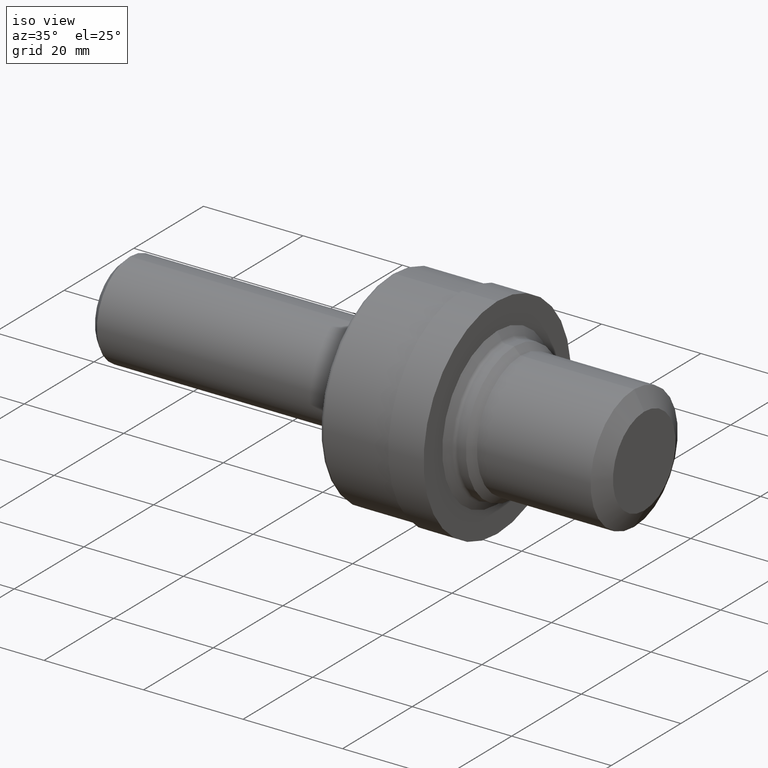
[diagram: clean part render]
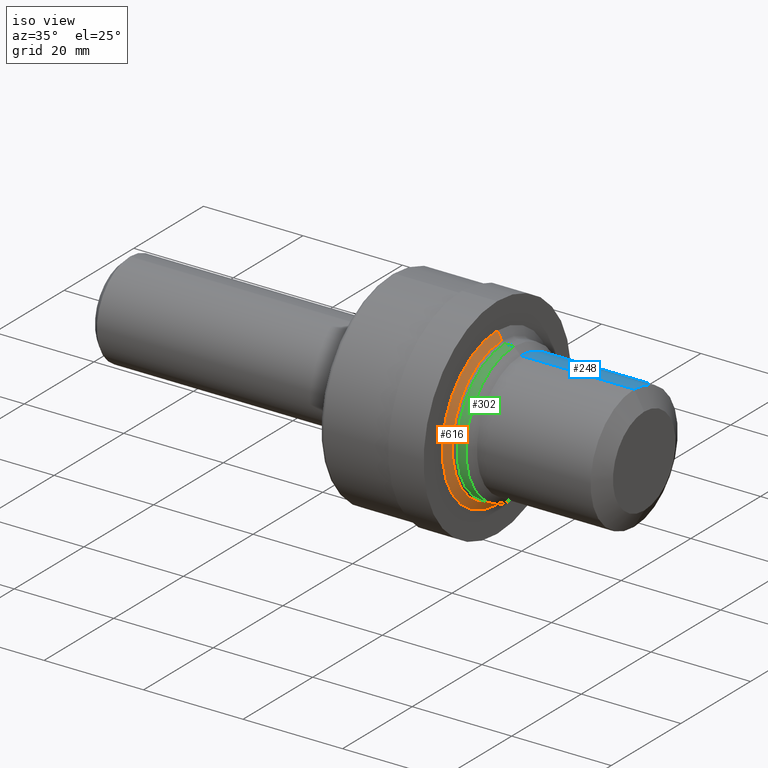
[diagram: same view with three faces highlighted in distinct colors, each labeled with its STEP entity id]
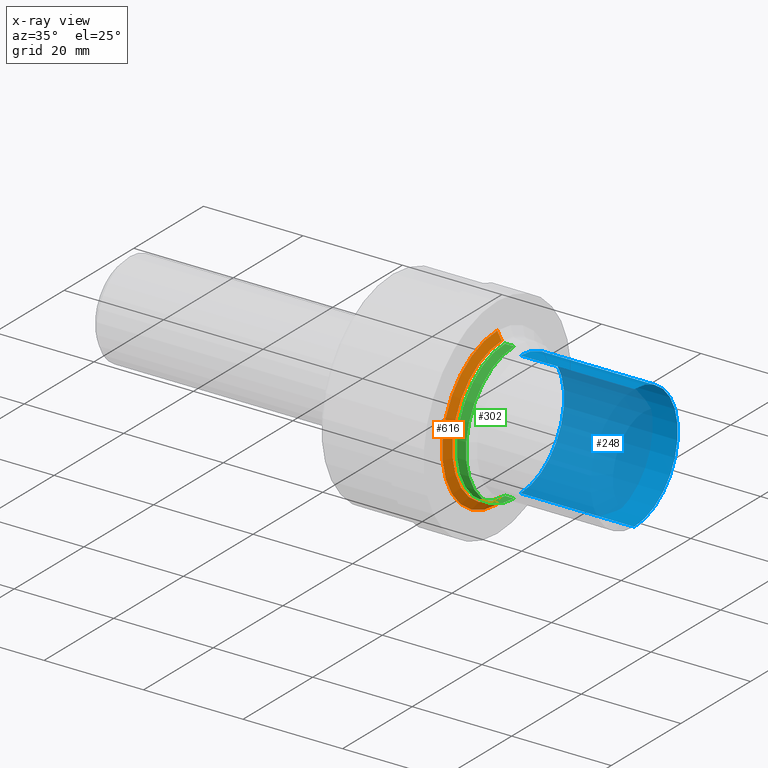
[diagram: x-ray of the same camera — body ghosted, the three highlighted faces saturated]
A machine part, iso view with three faces highlighted in distinct colors.
The next image is the same camera in x-ray (body ghosted, the three faces saturated) — at least one of them is partly hidden behind the body in this view.
Their STEP definitions:

[orange] entity #616 — the highlighted conical surface has half-angle 60 deg.
#7 = LINE ( 'NONE', #258, #745 ) ;
#19 = CARTESIAN_POINT ( 'NONE',  ( 2.955999999999999961, 0.000000000000000000, 0.6209999999999999964 ) ) ;
#36 = ORIENTED_EDGE ( 'NONE', *, *, #107, .F. ) ;
#45 = EDGE_CURVE ( 'NONE', #503, #673, #7, .T. ) ;
#66 = EDGE_CURVE ( 'NONE', #95, #503, #397, .T. ) ;
#71 = AXIS2_PLACEMENT_3D ( 'NONE', #545, #225, #612 ) ;
#72 = DIRECTION ( 'NONE',  ( -1.000000000000000000, -0.000000000000000000, -0.000000000000000000 ) ) ;
#95 = VERTEX_POINT ( 'NONE', #644 ) ;
#107 = EDGE_CURVE ( 'NONE', #95, #560, #769, .T. ) ;
#128 = ORIENTED_EDGE ( 'NONE', *, *, #501, .F. ) ;
#130 = FACE_OUTER_BOUND ( 'NONE', #678, .T. ) ;
#133 = DIRECTION ( 'NONE',  ( 0.000000000000000000, 0.000000000000000000, 1.000000000000000000 ) ) ;
#194 = DIRECTION ( 'NONE',  ( 0.000000000000000000, 0.000000000000000000, 1.000000000000000000 ) ) ;
#196 = DIRECTION ( 'NONE',  ( -0.4999999999999991118, 0.000000000000000000, 0.8660254037844391517 ) ) ;
#199 = CARTESIAN_POINT ( 'NONE',  ( 2.992026656797432516, 6.840877020037116138E-17, -0.5586000000000000965 ) ) ;
#225 = DIRECTION ( 'NONE',  ( -1.000000000000000000, -0.000000000000000000, -0.000000000000000000 ) ) ;
#258 = CARTESIAN_POINT ( 'NONE',  ( 2.992026656797432516, 0.000000000000000000, 0.5586000000000000965 ) ) ;
#278 = DIRECTION ( 'NONE',  ( -1.000000000000000000, -0.000000000000000000, -0.000000000000000000 ) ) ;
#384 = CARTESIAN_POINT ( 'NONE',  ( 2.992026656797432516, 0.000000000000000000, 0.000000000000000000 ) ) ;
#397 = CIRCLE ( 'NONE', #787, 0.5586000000000000965 ) ;
#416 = VECTOR ( 'NONE', #460, 39.37007874015748143 ) ;
#453 = CARTESIAN_POINT ( 'NONE',  ( 2.992026656797432516, 0.000000000000000000, 0.000000000000000000 ) ) ;
#460 = DIRECTION ( 'NONE',  ( -0.4999999999999991118, 1.060575238724907531E-16, -0.8660254037844391517 ) ) ;
#501 = EDGE_CURVE ( 'NONE', #560, #673, #670, .T. ) ;
#503 = VERTEX_POINT ( 'NONE', #733 ) ;
#545 = CARTESIAN_POINT ( 'NONE',  ( 2.955999999999999961, 0.000000000000000000, 0.000000000000000000 ) ) ;
#560 = VERTEX_POINT ( 'NONE', #632 ) ;
#612 = DIRECTION ( 'NONE',  ( 0.000000000000000000, 0.000000000000000000, 1.000000000000000000 ) ) ;
#616 = ADVANCED_FACE ( 'NONE', ( #130 ), #621, .T. ) ;
#621 = CONICAL_SURFACE ( 'NONE', #734, 0.5586000000000000965, 1.047197551196598742 ) ;
#632 = CARTESIAN_POINT ( 'NONE',  ( 2.955999999999999961, 7.605056622705062601E-17, -0.6209999999999999964 ) ) ;
#634 = ORIENTED_EDGE ( 'NONE', *, *, #66, .T. ) ;
#644 = CARTESIAN_POINT ( 'NONE',  ( 2.992026656797432516, 6.840877020037116138E-17, -0.5585999999999999854 ) ) ;
#670 = CIRCLE ( 'NONE', #71, 0.6209999999999999964 ) ;
#673 = VERTEX_POINT ( 'NONE', #19 ) ;
#678 = EDGE_LOOP ( 'NONE', ( #36, #634, #794, #128 ) ) ;
#733 = CARTESIAN_POINT ( 'NONE',  ( 2.992026656797432516, 0.000000000000000000, 0.5585999999999999854 ) ) ;
#734 = AXIS2_PLACEMENT_3D ( 'NONE', #384, #72, #194 ) ;
#745 = VECTOR ( 'NONE', #196, 39.37007874015748143 ) ;
#769 = LINE ( 'NONE', #199, #416 ) ;
#787 = AXIS2_PLACEMENT_3D ( 'NONE', #453, #278, #133 ) ;
#794 = ORIENTED_EDGE ( 'NONE', *, *, #45, .T. ) ;

[blue] entity #248 — the highlighted cylindrical surface (partial cylindrical patch) has radius 12.5095 mm, axis along (-1, -0, -0).
#17 = AXIS2_PLACEMENT_3D ( 'NONE', #696, #756, #250 ) ;
#49 = AXIS2_PLACEMENT_3D ( 'NONE', #559, #812, #239 ) ;
#59 = CYLINDRICAL_SURFACE ( 'NONE', #17, 0.4924999999999999933 ) ;
#89 = CARTESIAN_POINT ( 'NONE',  ( 0.000000000000000000, 6.031385485800715365E-17, -0.4924999999999999933 ) ) ;
#103 = ORIENTED_EDGE ( 'NONE', *, *, #597, .F. ) ;
#124 = EDGE_CURVE ( 'NONE', #221, #355, #659, .T. ) ;
#171 = EDGE_CURVE ( 'NONE', #748, #355, #200, .T. ) ;
#181 = CARTESIAN_POINT ( 'NONE',  ( 4.040000000000000036, 6.031385485800715365E-17, -0.4924999999999999933 ) ) ;
#189 = FACE_OUTER_BOUND ( 'NONE', #492, .T. ) ;
#200 = CIRCLE ( 'NONE', #49, 0.4924999999999999933 ) ;
#214 = CARTESIAN_POINT ( 'NONE',  ( 3.140599999999999170, 6.031385485800715365E-17, -0.4924999999999999933 ) ) ;
#221 = VERTEX_POINT ( 'NONE', #181 ) ;
#239 = DIRECTION ( 'NONE',  ( 0.000000000000000000, 0.000000000000000000, 1.000000000000000000 ) ) ;
#242 = CIRCLE ( 'NONE', #683, 0.4924999999999999933 ) ;
#248 = ADVANCED_FACE ( 'NONE', ( #189 ), #59, .T. ) ;
#250 = DIRECTION ( 'NONE',  ( 0.000000000000000000, 0.000000000000000000, 1.000000000000000000 ) ) ;
#304 = ORIENTED_EDGE ( 'NONE', *, *, #171, .F. ) ;
#355 = VERTEX_POINT ( 'NONE', #214 ) ;
#396 = CARTESIAN_POINT ( 'NONE',  ( 4.040000000000000036, 0.000000000000000000, 0.000000000000000000 ) ) ;
#404 = DIRECTION ( 'NONE',  ( 0.000000000000000000, 0.000000000000000000, 1.000000000000000000 ) ) ;
#418 = VECTOR ( 'NONE', #581, 39.37007874015748143 ) ;
#476 = VECTOR ( 'NONE', #525, 39.37007874015748143 ) ;
#492 = EDGE_LOOP ( 'NONE', ( #672, #808, #304, #103 ) ) ;
#525 = DIRECTION ( 'NONE',  ( -1.000000000000000000, -0.000000000000000000, -0.000000000000000000 ) ) ;
#532 = CARTESIAN_POINT ( 'NONE',  ( 0.000000000000000000, 0.000000000000000000, 0.4924999999999999933 ) ) ;
#559 = CARTESIAN_POINT ( 'NONE',  ( 3.140599999999999170, 0.000000000000000000, 0.000000000000000000 ) ) ;
#562 = VERTEX_POINT ( 'NONE', #824 ) ;
#579 = EDGE_CURVE ( 'NONE', #562, #221, #242, .T. ) ;
#581 = DIRECTION ( 'NONE',  ( -1.000000000000000000, -0.000000000000000000, -0.000000000000000000 ) ) ;
#595 = LINE ( 'NONE', #532, #418 ) ;
#596 = CARTESIAN_POINT ( 'NONE',  ( 3.140599999999999170, 0.000000000000000000, 0.4924999999999999933 ) ) ;
#597 = EDGE_CURVE ( 'NONE', #562, #748, #595, .T. ) ;
#642 = DIRECTION ( 'NONE',  ( -1.000000000000000000, -0.000000000000000000, -0.000000000000000000 ) ) ;
#659 = LINE ( 'NONE', #89, #476 ) ;
#672 = ORIENTED_EDGE ( 'NONE', *, *, #579, .T. ) ;
#683 = AXIS2_PLACEMENT_3D ( 'NONE', #396, #642, #404 ) ;
#696 = CARTESIAN_POINT ( 'NONE',  ( 0.000000000000000000, 0.000000000000000000, 0.000000000000000000 ) ) ;
#748 = VERTEX_POINT ( 'NONE', #596 ) ;
#756 = DIRECTION ( 'NONE',  ( -1.000000000000000000, -0.000000000000000000, -0.000000000000000000 ) ) ;
#808 = ORIENTED_EDGE ( 'NONE', *, *, #124, .T. ) ;
#812 = DIRECTION ( 'NONE',  ( -1.000000000000000000, -0.000000000000000000, -0.000000000000000000 ) ) ;
#824 = CARTESIAN_POINT ( 'NONE',  ( 4.040000000000000036, 0.000000000000000000, 0.4924999999999999933 ) ) ;

[green] entity #302 — the highlighted cylindrical surface (partial cylindrical patch) has radius 13.8201 mm, axis along (-1, -0, -0).
#13 = DIRECTION ( 'NONE',  ( 0.000000000000000000, 0.000000000000000000, 1.000000000000000000 ) ) ;
#63 = ORIENTED_EDGE ( 'NONE', *, *, #715, .F. ) ;
#65 = FACE_OUTER_BOUND ( 'NONE', #99, .T. ) ;
#73 = DIRECTION ( 'NONE',  ( -1.000000000000000000, -0.000000000000000000, -0.000000000000000000 ) ) ;
#80 = DIRECTION ( 'NONE',  ( -1.000000000000000000, -0.000000000000000000, -0.000000000000000000 ) ) ;
#88 = DIRECTION ( 'NONE',  ( -1.000000000000000000, -0.000000000000000000, -0.000000000000000000 ) ) ;
#99 = EDGE_LOOP ( 'NONE', ( #63, #676, #185, #511 ) ) ;
#106 = VERTEX_POINT ( 'NONE', #518 ) ;
#142 = CARTESIAN_POINT ( 'NONE',  ( 0.000000000000000000, 0.000000000000000000, 0.5441000000000000281 ) ) ;
#185 = ORIENTED_EDGE ( 'NONE', *, *, #572, .T. ) ;
#195 = DIRECTION ( 'NONE',  ( 0.000000000000000000, 0.000000000000000000, 1.000000000000000000 ) ) ;
#257 = CARTESIAN_POINT ( 'NONE',  ( 0.000000000000000000, 0.000000000000000000, 0.000000000000000000 ) ) ;
#302 = ADVANCED_FACE ( 'NONE', ( #65 ), #317, .T. ) ;
#309 = CIRCLE ( 'NONE', #770, 0.5441000000000000281 ) ;
#317 = CYLINDRICAL_SURFACE ( 'NONE', #719, 0.5441000000000000281 ) ;
#337 = CARTESIAN_POINT ( 'NONE',  ( 3.088999999999999968, 0.000000000000000000, 0.000000000000000000 ) ) ;
#343 = CARTESIAN_POINT ( 'NONE',  ( 3.017141393507181135, 0.000000000000000000, 0.5441000000000000281 ) ) ;
#393 = LINE ( 'NONE', #651, #578 ) ;
#435 = VERTEX_POINT ( 'NONE', #343 ) ;
#449 = DIRECTION ( 'NONE',  ( 0.000000000000000000, 0.000000000000000000, 1.000000000000000000 ) ) ;
#511 = ORIENTED_EDGE ( 'NONE', *, *, #797, .F. ) ;
#514 = DIRECTION ( 'NONE',  ( -1.000000000000000000, -0.000000000000000000, -0.000000000000000000 ) ) ;
#518 = CARTESIAN_POINT ( 'NONE',  ( 3.017141393507181135, 6.663303234160749700E-17, -0.5441000000000000281 ) ) ;
#520 = DIRECTION ( 'NONE',  ( -1.000000000000000000, -0.000000000000000000, -0.000000000000000000 ) ) ;
#566 = CIRCLE ( 'NONE', #771, 0.5441000000000000281 ) ;
#570 = EDGE_CURVE ( 'NONE', #689, #603, #309, .T. ) ;
#572 = EDGE_CURVE ( 'NONE', #603, #435, #766, .T. ) ;
#578 = VECTOR ( 'NONE', #520, 39.37007874015748143 ) ;
#582 = CARTESIAN_POINT ( 'NONE',  ( 3.017141393507181135, 0.000000000000000000, 0.000000000000000000 ) ) ;
#603 = VERTEX_POINT ( 'NONE', #783 ) ;
#651 = CARTESIAN_POINT ( 'NONE',  ( 0.000000000000000000, 6.663303234160749700E-17, -0.5441000000000000281 ) ) ;
#656 = VECTOR ( 'NONE', #88, 39.37007874015748143 ) ;
#676 = ORIENTED_EDGE ( 'NONE', *, *, #570, .T. ) ;
#689 = VERTEX_POINT ( 'NONE', #763 ) ;
#715 = EDGE_CURVE ( 'NONE', #689, #106, #393, .T. ) ;
#719 = AXIS2_PLACEMENT_3D ( 'NONE', #257, #514, #195 ) ;
#763 = CARTESIAN_POINT ( 'NONE',  ( 3.088999999999999968, 6.663303234160749700E-17, -0.5441000000000000281 ) ) ;
#766 = LINE ( 'NONE', #142, #656 ) ;
#770 = AXIS2_PLACEMENT_3D ( 'NONE', #337, #80, #449 ) ;
#771 = AXIS2_PLACEMENT_3D ( 'NONE', #582, #73, #13 ) ;
#783 = CARTESIAN_POINT ( 'NONE',  ( 3.088999999999999968, 0.000000000000000000, 0.5441000000000000281 ) ) ;
#797 = EDGE_CURVE ( 'NONE', #106, #435, #566, .T. ) ;